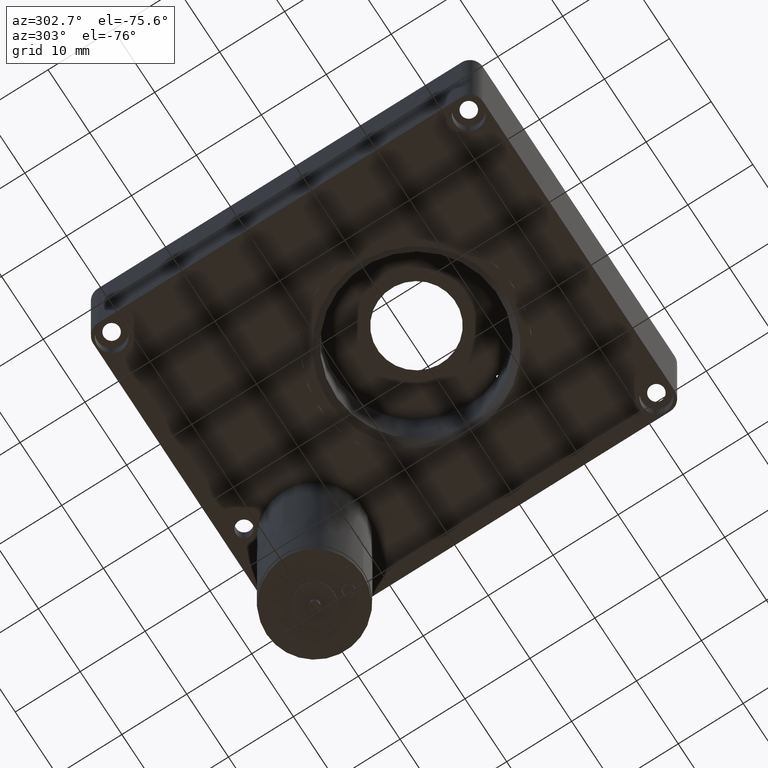
[diagram: clean part render]
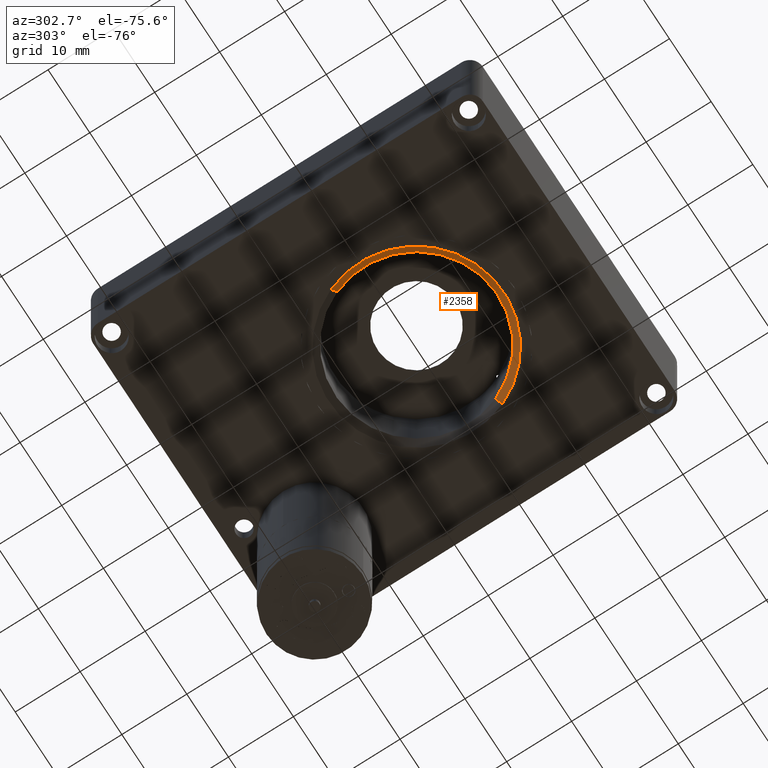
[diagram: same view with one face highlighted and labeled with its STEP entity id]
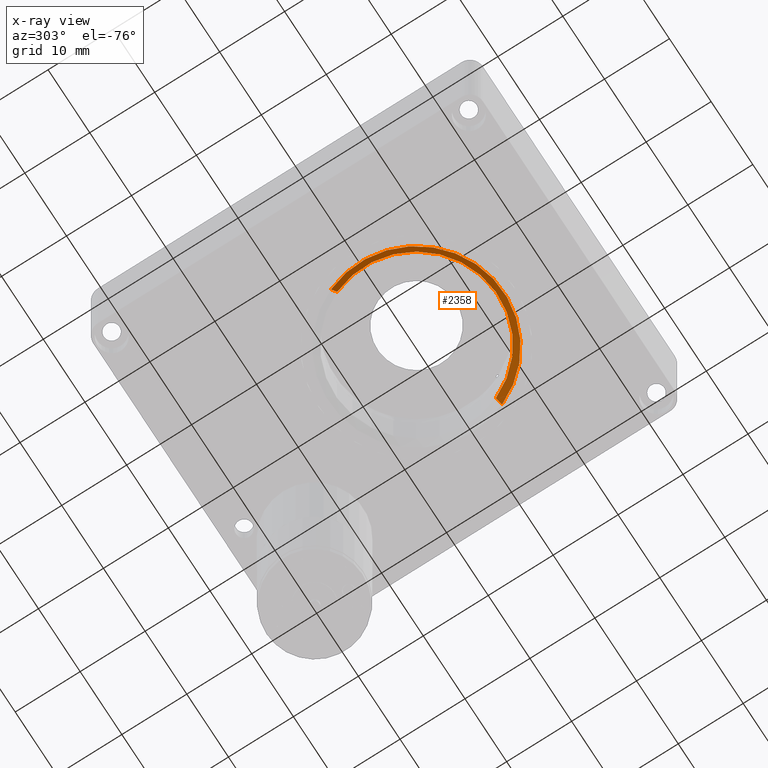
[diagram: x-ray of the same camera — body ghosted, the highlighted face saturated]
A machine part, auxiliary view. The second image highlights one B-rep face of the part: STEP entity #2358.
The next image is the same camera in x-ray: the body ghosted, the highlighted face saturated — about 0% of this face is hidden behind the body in this view.
In plain terms, the highlighted conical surface has half-angle 45 deg.
Its self-contained STEP definition (entity closure, byte-faithful):
#165 = DIRECTION ( 'NONE',  ( 6.938893903907228400E-018, 2.775557561562891400E-017, 1.000000000000000000 ) ) ;
#550 = CARTESIAN_POINT ( 'NONE',  ( 13.45726516282897700, 29.79742352505576300, -1.999999999999983600 ) ) ;
#575 = DIRECTION ( 'NONE',  ( -0.6529556861441475600, 0.2713832565432644500, -0.7071067811865463500 ) ) ;
#776 = DIRECTION ( 'NONE',  ( -0.9234187869736817400, 0.3837938820044609100, 0.0000000000000000000 ) ) ;
#813 = VERTEX_POINT ( 'NONE', #6670 ) ;
#1029 = CARTESIAN_POINT ( 'NONE',  ( 12.53384637585527800, 30.18121740706022700, -2.999999999999997300 ) ) ;
#1160 = LINE ( 'NONE', #550, #3509 ) ;
#1298 = VERTEX_POINT ( 'NONE', #1029 ) ;
#1478 = CARTESIAN_POINT ( 'NONE',  ( 25.00000000000000000, 25.00000000000000000, -1.999999999999983600 ) ) ;
#1640 = EDGE_CURVE ( 'NONE', #1298, #4845, #2131, .T. ) ;
#1672 = DIRECTION ( 'NONE',  ( 0.6529556861441475600, -0.2713832565432643400, -0.7071067811865463500 ) ) ;
#1682 = ORIENTED_EDGE ( 'NONE', *, *, #1640, .F. ) ;
#1993 = CARTESIAN_POINT ( 'NONE',  ( 36.54273483717102500, 20.20257647494424400, -1.999999999999983600 ) ) ;
#2046 = EDGE_CURVE ( 'NONE', #3114, #4845, #5850, .T. ) ;
#2131 = CIRCLE ( 'NONE', #6144, 13.50000000000001600 ) ;
#2358 = ADVANCED_FACE ( 'NONE', ( #7168 ), #6549, .F. ) ;
#2442 = ORIENTED_EDGE ( 'NONE', *, *, #2046, .T. ) ;
#2483 = CARTESIAN_POINT ( 'NONE',  ( 25.00000000000000000, 25.00000000000000000, -1.999999999999983600 ) ) ;
#2618 = CIRCLE ( 'NONE', #5281, 12.50000000000000200 ) ;
#2952 = ORIENTED_EDGE ( 'NONE', *, *, #3314, .F. ) ;
#3114 = VERTEX_POINT ( 'NONE', #1993 ) ;
#3171 = EDGE_LOOP ( 'NONE', ( #5601, #2442, #1682, #2952 ) ) ;
#3241 = DIRECTION ( 'NONE',  ( -0.9234187869736817400, 0.3837938820044609100, 0.0000000000000000000 ) ) ;
#3314 = EDGE_CURVE ( 'NONE', #813, #1298, #1160, .T. ) ;
#3509 = VECTOR ( 'NONE', #575, 1000.000000000000000 ) ;
#3749 = DIRECTION ( 'NONE',  ( -6.938893903907228400E-018, -2.775557561562891400E-017, -1.000000000000000000 ) ) ;
#3909 = CARTESIAN_POINT ( 'NONE',  ( 36.54273483717102500, 20.20257647494424400, -1.999999999999983600 ) ) ;
#4204 = AXIS2_PLACEMENT_3D ( 'NONE', #2483, #6355, #776 ) ;
#4224 = EDGE_CURVE ( 'NONE', #3114, #813, #2618, .T. ) ;
#4232 = CARTESIAN_POINT ( 'NONE',  ( 37.46615362414472400, 19.81878259293977600, -2.999999999999997300 ) ) ;
#4377 = VECTOR ( 'NONE', #1672, 1000.000000000000000 ) ;
#4845 = VERTEX_POINT ( 'NONE', #4232 ) ;
#5074 = DIRECTION ( 'NONE',  ( -0.9234187869736818500, 0.3837938820044608500, 0.0000000000000000000 ) ) ;
#5149 = CARTESIAN_POINT ( 'NONE',  ( 25.00000000000000000, 25.00000000000000000, -2.999999999999997300 ) ) ;
#5281 = AXIS2_PLACEMENT_3D ( 'NONE', #1478, #3749, #3241 ) ;
#5601 = ORIENTED_EDGE ( 'NONE', *, *, #4224, .F. ) ;
#5850 = LINE ( 'NONE', #3909, #4377 ) ;
#6144 = AXIS2_PLACEMENT_3D ( 'NONE', #5149, #165, #5074 ) ;
#6355 = DIRECTION ( 'NONE',  ( -6.938893903907228400E-018, -2.775557561562891400E-017, -1.000000000000000000 ) ) ;
#6549 = CONICAL_SURFACE ( 'NONE', #4204, 12.50000000000000200, 0.7853981633974500600 ) ;
#6670 = CARTESIAN_POINT ( 'NONE',  ( 13.45726516282897700, 29.79742352505576300, -1.999999999999983600 ) ) ;
#7168 = FACE_OUTER_BOUND ( 'NONE', #3171, .T. ) ;